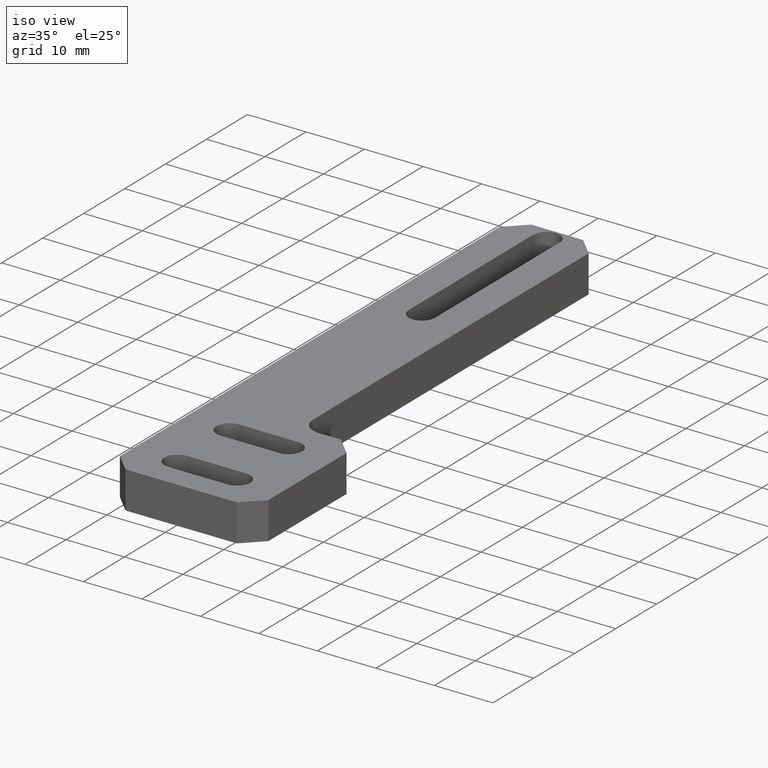
[diagram: clean part render]
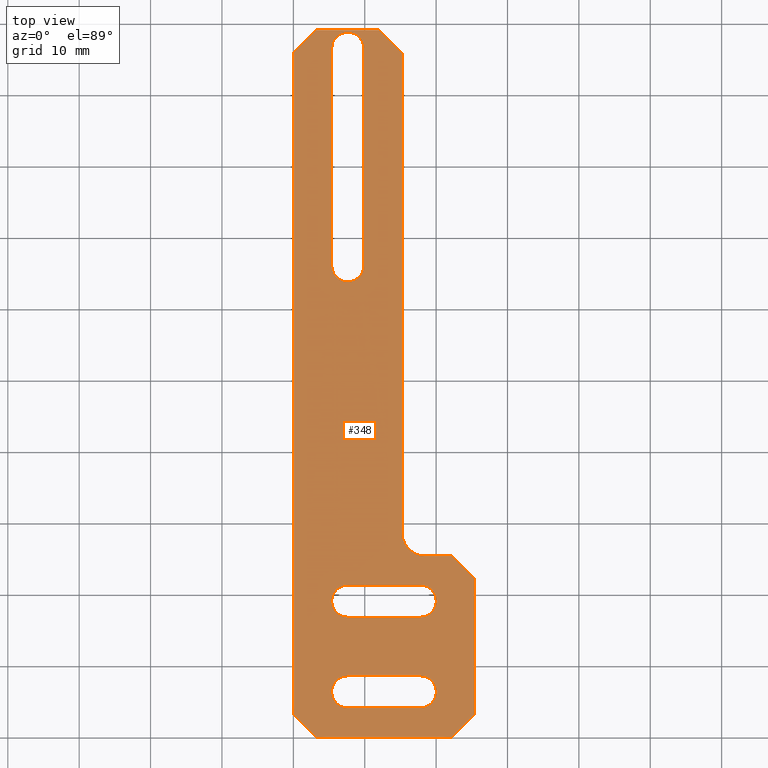
[diagram: tour spotlight — one face highlighted and labeled with its STEP entity id]
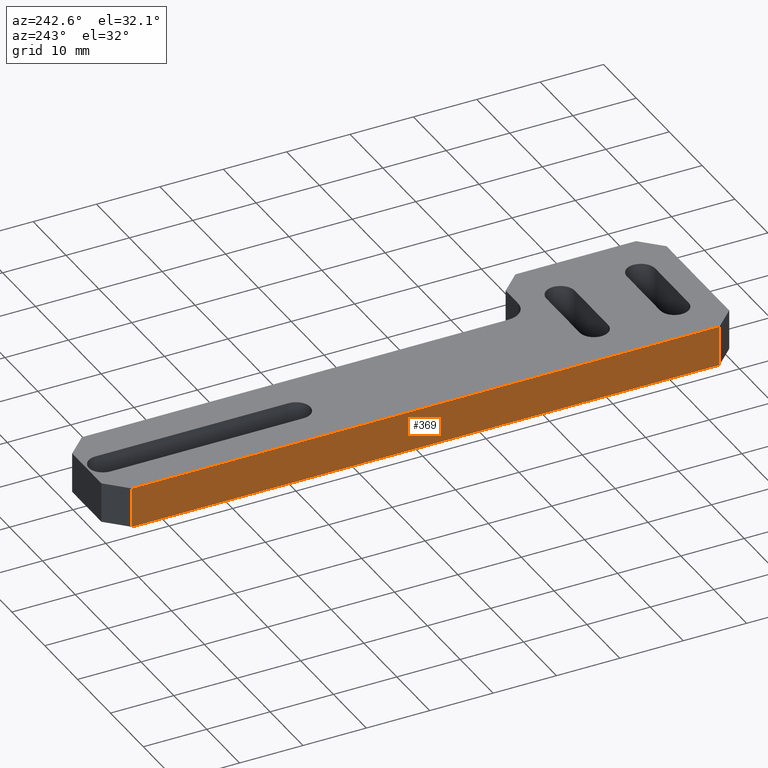
[diagram: tour spotlight — one face highlighted and labeled with its STEP entity id]
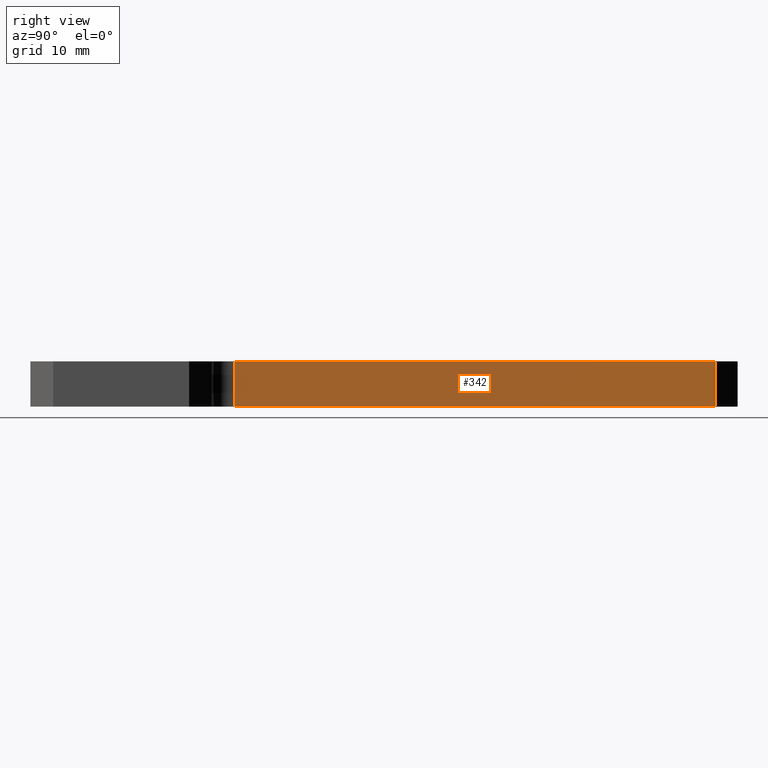
[diagram: tour spotlight — one face highlighted and labeled with its STEP entity id]
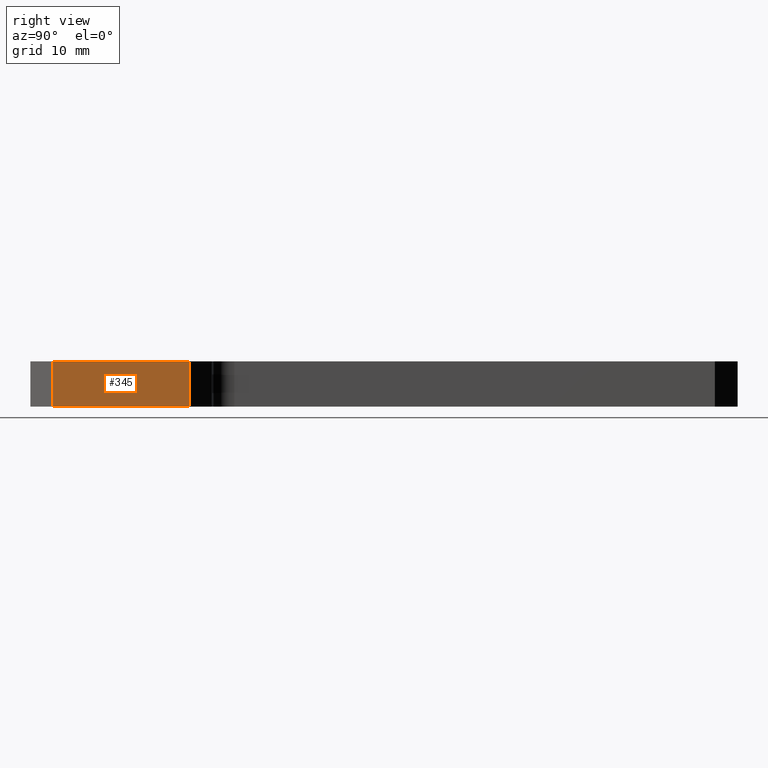
[diagram: tour spotlight — one face highlighted and labeled with its STEP entity id]
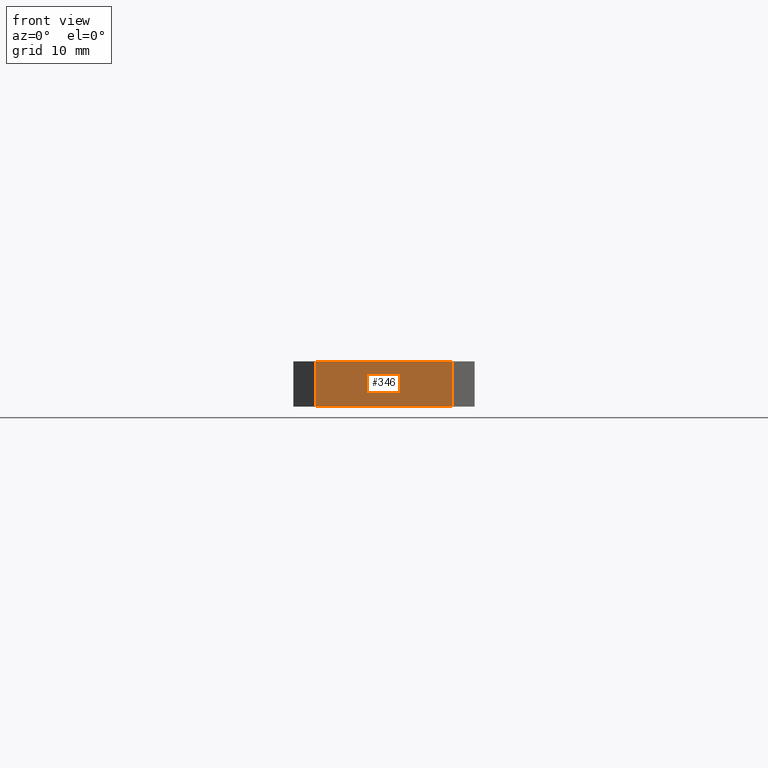
[diagram: tour spotlight — one face highlighted and labeled with its STEP entity id]
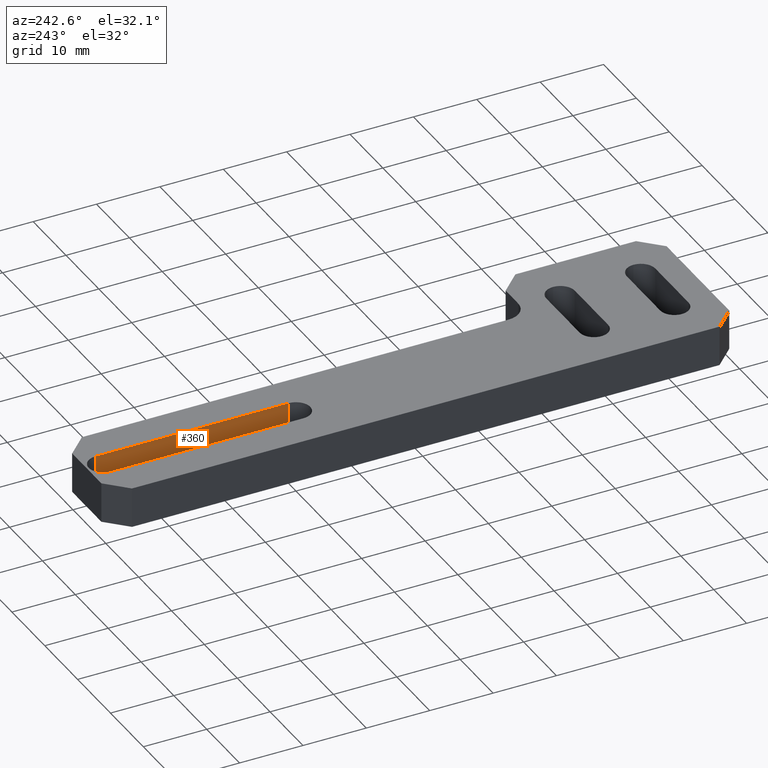
[diagram: tour spotlight — one face highlighted and labeled with its STEP entity id]
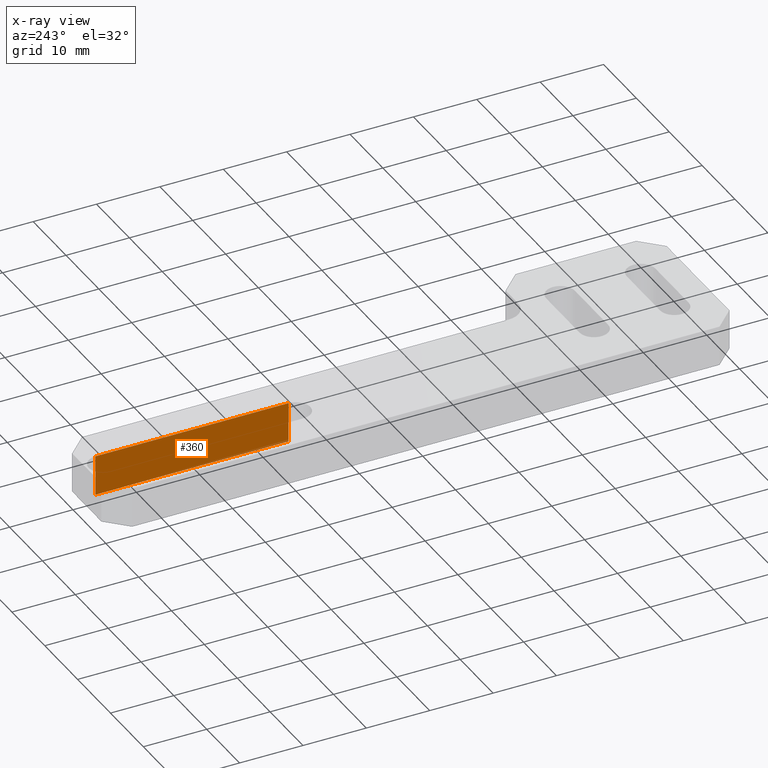
[diagram: x-ray of the same camera — body ghosted, this tour face saturated]
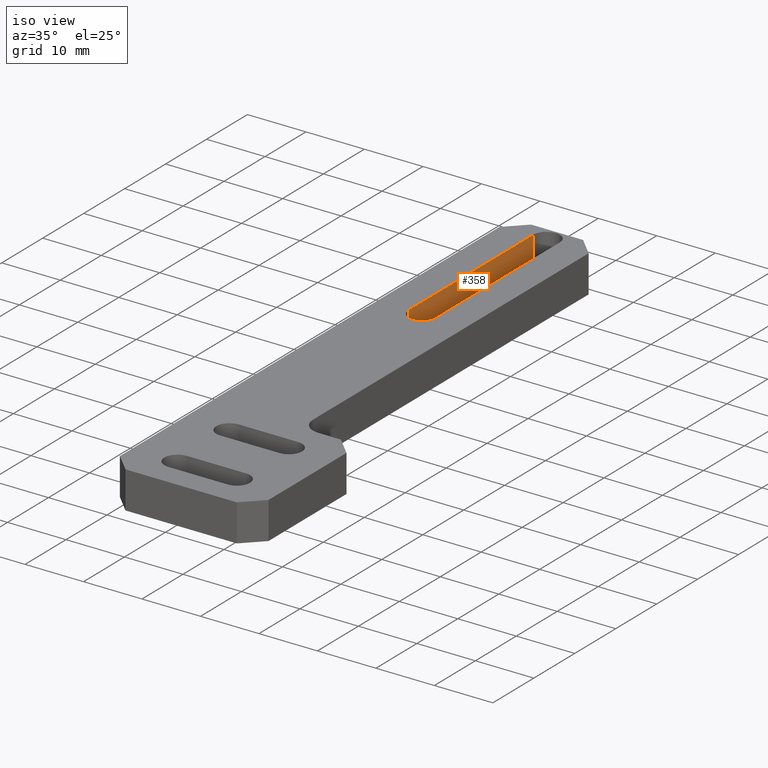
[diagram: tour spotlight — one face highlighted and labeled with its STEP entity id]
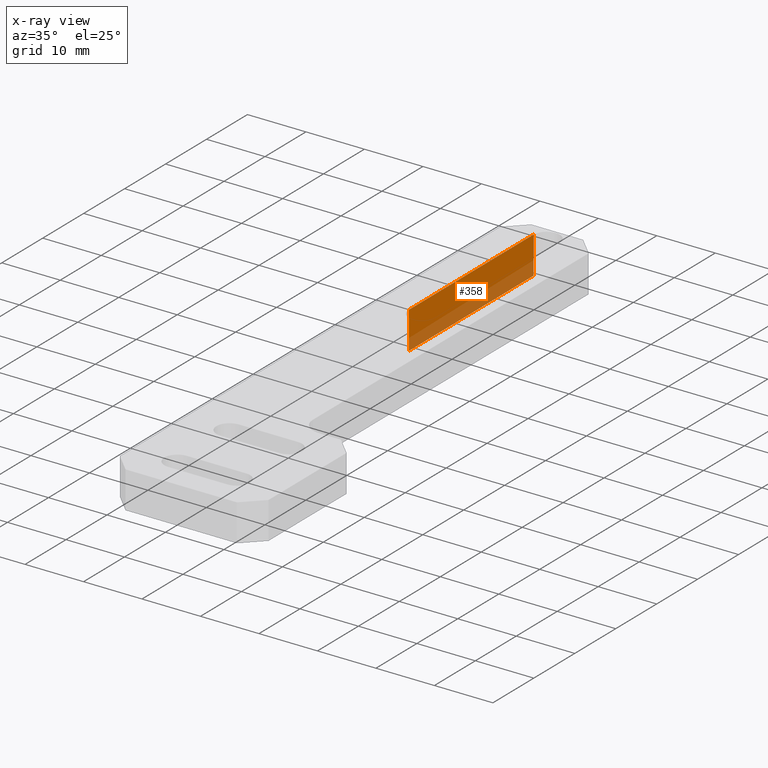
[diagram: x-ray of the same camera — body ghosted, this tour face saturated]
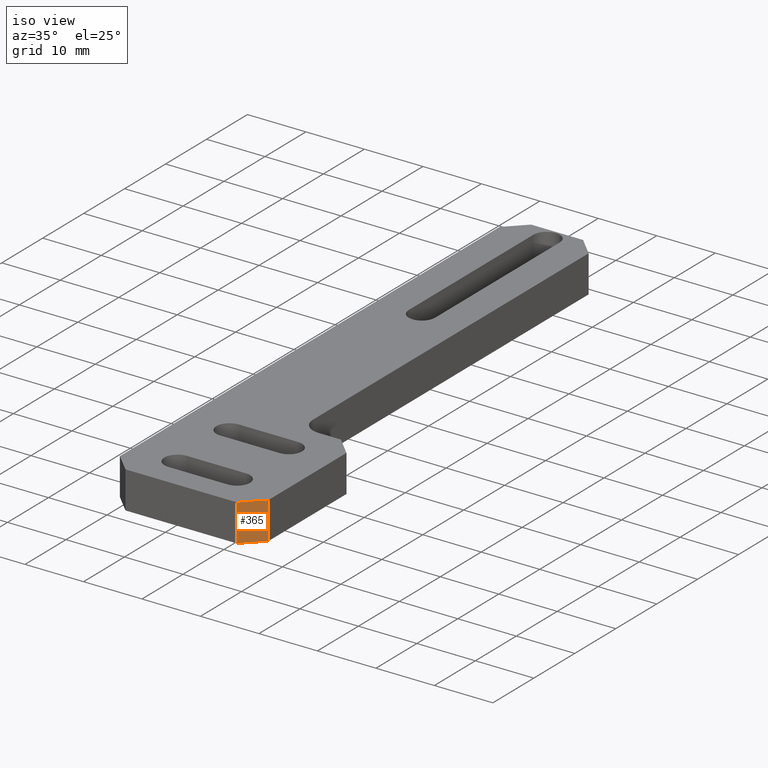
[diagram: tour spotlight — one face highlighted and labeled with its STEP entity id]
A machine part: a face-by-face anatomy tour. The part has 28 B-rep faces; the first image is the clean iso view, then the 8 largest visible faces are spotlighted one at a time (largest first), each with its STEP entity span.

Face 1 — top view, entity #348. In plain terms, the highlighted planar face has unit normal (-0, 0, -1).
Definition (entity closure, byte-faithful):
#1 = VECTOR ( 'NONE', #173, 39.37007874015748100 ) ;
#2 = LINE ( 'NONE', #172, #5 ) ;
#3 = CIRCLE ( 'NONE', #965, 0.1250000000000000300 ) ;
#4 = LINE ( 'NONE', #178, #7 ) ;
#5 = VECTOR ( 'NONE', #167, 39.37007874015748900 ) ;
#6 = LINE ( 'NONE', #180, #9 ) ;
#7 = VECTOR ( 'NONE', #179, 39.37007874015748100 ) ;
#8 = LINE ( 'NONE', #182, #11 ) ;
#9 = VECTOR ( 'NONE', #181, 39.37007874015748900 ) ;
#11 = VECTOR ( 'NONE', #183, 39.37007874015748900 ) ;
#31 = CIRCLE ( 'NONE', #966, 0.08850000000000002300 ) ;
#39 = CIRCLE ( 'NONE', #969, 0.08850000000000002300 ) ;
#43 = LINE ( 'NONE', #225, #46 ) ;
#46 = VECTOR ( 'NONE', #226, 39.37007874015748100 ) ;
#51 = LINE ( 'NONE', #233, #54 ) ;
#54 = VECTOR ( 'NONE', #234, 39.37007874015748100 ) ;
#59 = LINE ( 'NONE', #241, #62 ) ;
#62 = VECTOR ( 'NONE', #242, 39.37007874015748100 ) ;
#71 = LINE ( 'NONE', #253, #74 ) ;
#74 = VECTOR ( 'NONE', #254, 39.37007874015748100 ) ;
#79 = LINE ( 'NONE', #260, #82 ) ;
#82 = VECTOR ( 'NONE', #261, 39.37007874015748100 ) ;
#83 = LINE ( 'NONE', #264, #86 ) ;
#86 = VECTOR ( 'NONE', #265, 39.37007874015748100 ) ;
#120 = LINE ( 'NONE', #304, #122 ) ;
#122 = VECTOR ( 'NONE', #298, 39.37007874015748100 ) ;
#159 = DIRECTION ( 'NONE',  ( -1.000000000000000000, 0.0000000000000000000, 0.0000000000000000000 ) ) ;
#160 = CARTESIAN_POINT ( 'NONE',  ( 0.2999999999999999900, 0.6614999999999997500, 0.0000000000000000000 ) ) ;
#161 = DIRECTION ( 'NONE',  ( -1.000000000000000000, 0.0000000000000000000, 0.0000000000000000000 ) ) ;
#162 = DIRECTION ( 'NONE',  ( 1.000000000000000000, 0.0000000000000000000, 0.0000000000000000000 ) ) ;
#163 = CARTESIAN_POINT ( 'NONE',  ( 0.2999999999999999900, 0.7499999999999998900, 0.0000000000000000000 ) ) ;
#164 = DIRECTION ( 'NONE',  ( 0.0000000000000000000, 0.0000000000000000000, 1.000000000000000000 ) ) ;
#165 = DIRECTION ( 'NONE',  ( 1.000000000000000000, 0.0000000000000000000, 0.0000000000000000000 ) ) ;
#166 = CARTESIAN_POINT ( 'NONE',  ( 0.7000000000000000700, 0.8384999999999998000, 0.0000000000000000000 ) ) ;
#167 = DIRECTION ( 'NONE',  ( -0.7071067811865490200, 0.7071067811865459100, -0.0000000000000000000 ) ) ;
#168 = CARTESIAN_POINT ( 'NONE',  ( 1.000000000000000000, 0.8749999999999990000, 0.0000000000000000000 ) ) ;
#169 = CARTESIAN_POINT ( 'NONE',  ( 0.7000000000000000700, 0.7499999999999998900, 0.0000000000000000000 ) ) ;
#170 = DIRECTION ( 'NONE',  ( 0.0000000000000000000, 0.0000000000000000000, 1.000000000000000000 ) ) ;
#171 = DIRECTION ( 'NONE',  ( 1.000000000000000000, 0.0000000000000000000, 0.0000000000000000000 ) ) ;
#172 = CARTESIAN_POINT ( 'NONE',  ( 0.5999999999999999800, 3.775000000000000400, 0.0000000000000000000 ) ) ;
#173 = DIRECTION ( 'NONE',  ( -0.7071067811865490200, 0.7071067811865460200, -0.0000000000000000000 ) ) ;
#175 = CARTESIAN_POINT ( 'NONE',  ( 0.7250000000000002000, 1.125000000000000000, 0.0000000000000000000 ) ) ;
#176 = DIRECTION ( 'NONE',  ( -0.0000000000000000000, -0.0000000000000000000, -1.000000000000000000 ) ) ;
#177 = DIRECTION ( 'NONE',  ( -1.000000000000000000, 0.0000000000000000000, 0.0000000000000000000 ) ) ;
#178 = CARTESIAN_POINT ( 'NONE',  ( 0.1249999999999999000, 3.899999999999999900, 0.0000000000000000000 ) ) ;
#179 = DIRECTION ( 'NONE',  ( -0.7071067811865460200, -0.7071067811865490200, -0.0000000000000000000 ) ) ;
#180 = CARTESIAN_POINT ( 'NONE',  ( -3.532634997540461600E-019, 0.1249999999999999000, 0.0000000000000000000 ) ) ;
#181 = DIRECTION ( 'NONE',  ( 0.7071067811865490200, -0.7071067811865459100, -0.0000000000000000000 ) ) ;
#182 = CARTESIAN_POINT ( 'NONE',  ( 0.8749999999999995600, 0.0000000000000000000, 0.0000000000000000000 ) ) ;
#183 = DIRECTION ( 'NONE',  ( 0.7071067811865459100, 0.7071067811865490200, -0.0000000000000000000 ) ) ;
#205 = CARTESIAN_POINT ( 'NONE',  ( 0.7000000000000000700, 0.2500000000000000000, 0.0000000000000000000 ) ) ;
#206 = DIRECTION ( 'NONE',  ( 0.0000000000000000000, 0.0000000000000000000, 1.000000000000000000 ) ) ;
#207 = DIRECTION ( 'NONE',  ( -1.000000000000000000, 0.0000000000000000000, 0.0000000000000000000 ) ) ;
#222 = CARTESIAN_POINT ( 'NONE',  ( 0.7000000000000000700, 0.7499999999999998900, 0.0000000000000000000 ) ) ;
#223 = DIRECTION ( 'NONE',  ( 0.0000000000000000000, 0.0000000000000000000, 1.000000000000000000 ) ) ;
#224 = DIRECTION ( 'NONE',  ( 1.000000000000000000, 0.0000000000000000000, 0.0000000000000000000 ) ) ;
#225 = CARTESIAN_POINT ( 'NONE',  ( -1.102182119232625300E-017, 3.899999999999999900, 0.0000000000000000000 ) ) ;
#226 = DIRECTION ( 'NONE',  ( 2.826107998032372400E-018, -1.000000000000000000, 0.0000000000000000000 ) ) ;
#233 = CARTESIAN_POINT ( 'NONE',  ( 0.5999999999999999800, 3.899999999999999900, 0.0000000000000000000 ) ) ;
#234 = DIRECTION ( 'NONE',  ( -1.000000000000000000, 0.0000000000000000000, 0.0000000000000000000 ) ) ;
#241 = CARTESIAN_POINT ( 'NONE',  ( 0.5999999999999999800, 3.899999999999999900, 0.0000000000000000000 ) ) ;
#242 = DIRECTION ( 'NONE',  ( -1.177520686924251200E-016, 1.000000000000000000, -0.0000000000000000000 ) ) ;
#253 = CARTESIAN_POINT ( 'NONE',  ( 0.6000000000000003100, 1.000000000000000000, 0.0000000000000000000 ) ) ;
#254 = DIRECTION ( 'NONE',  ( -1.000000000000000000, -0.0000000000000000000, -0.0000000000000000000 ) ) ;
#260 = CARTESIAN_POINT ( 'NONE',  ( 1.000000000000000000, 1.000000000000000000, 0.0000000000000000000 ) ) ;
#261 = DIRECTION ( 'NONE',  ( -0.0000000000000000000, 1.000000000000000000, -0.0000000000000000000 ) ) ;
#264 = CARTESIAN_POINT ( 'NONE',  ( 1.000000000000000000, 0.0000000000000000000, 0.0000000000000000000 ) ) ;
#265 = DIRECTION ( 'NONE',  ( 1.000000000000000000, -0.0000000000000000000, -0.0000000000000000000 ) ) ;
#298 = DIRECTION ( 'NONE',  ( -5.691349986800549600E-017, 1.000000000000000000, -0.0000000000000000000 ) ) ;
#304 = CARTESIAN_POINT ( 'NONE',  ( 0.3884999999999993500, 3.799999999999999400, 0.0000000000000000000 ) ) ;
#348 = ADVANCED_FACE ( 'NONE', ( #803, #800, #804, #807 ), #630, .F. ) ;
#371 = ORIENTED_EDGE ( 'NONE', *, *, #866, .T. ) ;
#372 = ORIENTED_EDGE ( 'NONE', *, *, #924, .T. ) ;
#373 = ORIENTED_EDGE ( 'NONE', *, *, #862, .T. ) ;
#374 = ORIENTED_EDGE ( 'NONE', *, *, #861, .F. ) ;
#376 = ORIENTED_EDGE ( 'NONE', *, *, #864, .T. ) ;
#377 = ORIENTED_EDGE ( 'NONE', *, *, #906, .T. ) ;
#378 = ORIENTED_EDGE ( 'NONE', *, *, #859, .F. ) ;
#379 = ORIENTED_EDGE ( 'NONE', *, *, #867, .T. ) ;
#380 = ORIENTED_EDGE ( 'NONE', *, *, #914, .T. ) ;
#381 = ORIENTED_EDGE ( 'NONE', *, *, #910, .T. ) ;
#382 = ORIENTED_EDGE ( 'NONE', *, *, #904, .F. ) ;
#383 = ORIENTED_EDGE ( 'NONE', *, *, #865, .T. ) ;
#384 = ORIENTED_EDGE ( 'NONE', *, *, #920, .T. ) ;
#392 = ORIENTED_EDGE ( 'NONE', *, *, #863, .T. ) ;
#393 = ORIENTED_EDGE ( 'NONE', *, *, #926, .T. ) ;
#468 = EDGE_LOOP ( 'NONE', ( #506, #378, #507, #382, #374 ) ) ;
#469 = EDGE_LOOP ( 'NONE', ( #509, #508, #561, #560, #562 ) ) ;
#472 = EDGE_LOOP ( 'NONE', ( #514, #513, #511, #510 ) ) ;
#475 = EDGE_LOOP ( 'NONE', ( #372, #373, #384, #392, #380, #376, #381, #383, #377, #371, #393, #379 ) ) ;
#506 = ORIENTED_EDGE ( 'NONE', *, *, #858, .F. ) ;
#507 = ORIENTED_EDGE ( 'NONE', *, *, #860, .F. ) ;
#508 = ORIENTED_EDGE ( 'NONE', *, *, #855, .F. ) ;
#509 = ORIENTED_EDGE ( 'NONE', *, *, #854, .F. ) ;
#510 = ORIENTED_EDGE ( 'NONE', *, *, #853, .F. ) ;
#511 = ORIENTED_EDGE ( 'NONE', *, *, #852, .F. ) ;
#513 = ORIENTED_EDGE ( 'NONE', *, *, #851, .F. ) ;
#514 = ORIENTED_EDGE ( 'NONE', *, *, #948, .F. ) ;
#560 = ORIENTED_EDGE ( 'NONE', *, *, #898, .F. ) ;
#561 = ORIENTED_EDGE ( 'NONE', *, *, #856, .F. ) ;
#562 = ORIENTED_EDGE ( 'NONE', *, *, #857, .F. ) ;
#563 = VERTEX_POINT ( 'NONE', #704 ) ;
#564 = VERTEX_POINT ( 'NONE', #709 ) ;
#565 = VERTEX_POINT ( 'NONE', #703 ) ;
#567 = VERTEX_POINT ( 'NONE', #711 ) ;
#572 = VERTEX_POINT ( 'NONE', #714 ) ;
#573 = VERTEX_POINT ( 'NONE', #715 ) ;
#574 = VERTEX_POINT ( 'NONE', #716 ) ;
#575 = VERTEX_POINT ( 'NONE', #717 ) ;
#576 = VERTEX_POINT ( 'NONE', #718 ) ;
#579 = VERTEX_POINT ( 'NONE', #721 ) ;
#580 = VERTEX_POINT ( 'NONE', #722 ) ;
#588 = VERTEX_POINT ( 'NONE', #730 ) ;
#589 = VERTEX_POINT ( 'NONE', #731 ) ;
#591 = VERTEX_POINT ( 'NONE', #733 ) ;
#592 = VERTEX_POINT ( 'NONE', #734 ) ;
#593 = VERTEX_POINT ( 'NONE', #735 ) ;
#594 = VERTEX_POINT ( 'NONE', #736 ) ;
#600 = VERTEX_POINT ( 'NONE', #742 ) ;
#624 = DIRECTION ( 'NONE',  ( -0.0000000000000000000, 0.0000000000000000000, -1.000000000000000000 ) ) ;
#629 = CARTESIAN_POINT ( 'NONE',  ( 0.0000000000000000000, 0.0000000000000000000, 0.0000000000000000000 ) ) ;
#630 = PLANE ( 'NONE',  #884 ) ;
#631 = DIRECTION ( 'NONE',  ( -1.000000000000000000, 0.0000000000000000000, 0.0000000000000000000 ) ) ;
#703 = CARTESIAN_POINT ( 'NONE',  ( 0.2999999999999999900, 0.1615000000000001700, 0.0000000000000000000 ) ) ;
#704 = CARTESIAN_POINT ( 'NONE',  ( 0.7000000000000000700, 0.3385000000000003000, 0.0000000000000000000 ) ) ;
#709 = CARTESIAN_POINT ( 'NONE',  ( -1.066855769257220400E-017, 3.774999999999999500, 0.0000000000000000000 ) ) ;
#711 = CARTESIAN_POINT ( 'NONE',  ( 0.7885000000000000900, 0.2500000000000000000, 0.0000000000000000000 ) ) ;
#714 = CARTESIAN_POINT ( 'NONE',  ( -1.369456631829672300E-016, 0.1250000000000003100, 0.0000000000000000000 ) ) ;
#715 = CARTESIAN_POINT ( 'NONE',  ( 0.7885000000000000900, 0.7499999999999998900, 0.0000000000000000000 ) ) ;
#716 = CARTESIAN_POINT ( 'NONE',  ( 0.7000000000000000700, 0.8384999999999999100, 0.0000000000000000000 ) ) ;
#717 = CARTESIAN_POINT ( 'NONE',  ( 0.4750000000000001400, 3.899999999999999900, 0.0000000000000000000 ) ) ;
#718 = CARTESIAN_POINT ( 'NONE',  ( 0.1249999999999999400, 3.899999999999999900, 0.0000000000000000000 ) ) ;
#721 = CARTESIAN_POINT ( 'NONE',  ( 0.6000000000000003100, 1.125000000000000200, 0.0000000000000000000 ) ) ;
#722 = CARTESIAN_POINT ( 'NONE',  ( 0.5999999999999999800, 3.775000000000000400, 0.0000000000000000000 ) ) ;
#730 = CARTESIAN_POINT ( 'NONE',  ( 0.8749999999999984500, 1.000000000000000000, 0.0000000000000000000 ) ) ;
#731 = CARTESIAN_POINT ( 'NONE',  ( 0.7250000000000002000, 1.000000000000000000, 0.0000000000000000000 ) ) ;
#733 = CARTESIAN_POINT ( 'NONE',  ( 0.1250000000000004400, 0.0000000000000000000, 0.0000000000000000000 ) ) ;
#734 = CARTESIAN_POINT ( 'NONE',  ( 1.000000000000000000, 0.1250000000000010000, 0.0000000000000000000 ) ) ;
#735 = CARTESIAN_POINT ( 'NONE',  ( 1.000000000000000000, 0.8749999999999990000, 0.0000000000000000000 ) ) ;
#736 = CARTESIAN_POINT ( 'NONE',  ( 0.8749999999999995600, 0.0000000000000000000, 0.0000000000000000000 ) ) ;
#742 = CARTESIAN_POINT ( 'NONE',  ( 0.3884999999999994000, 2.599999999999999600, 0.0000000000000000000 ) ) ;
#745 = CARTESIAN_POINT ( 'NONE',  ( 0.2999999999999999900, 0.3385000000000003000, 0.0000000000000000000 ) ) ;
#746 = CARTESIAN_POINT ( 'NONE',  ( 0.2999999999999999900, 0.8384999999999998000, 0.0000000000000000000 ) ) ;
#748 = CARTESIAN_POINT ( 'NONE',  ( 0.2114999999999993300, 3.799999999999999400, 0.0000000000000000000 ) ) ;
#749 = CARTESIAN_POINT ( 'NONE',  ( 0.7000000000000000700, 0.6614999999999997500, 0.0000000000000000000 ) ) ;
#751 = CARTESIAN_POINT ( 'NONE',  ( 0.7000000000000000700, 0.1614999999999999800, 0.0000000000000000000 ) ) ;
#752 = CARTESIAN_POINT ( 'NONE',  ( 0.2114999999999991900, 2.599999999999999600, 0.0000000000000000000 ) ) ;
#753 = CARTESIAN_POINT ( 'NONE',  ( 0.2999999999999999900, 0.6614999999999997500, 0.0000000000000000000 ) ) ;
#754 = CARTESIAN_POINT ( 'NONE',  ( 0.3884999999999993500, 3.799999999999999400, 0.0000000000000000000 ) ) ;
#757 = DIRECTION ( 'NONE',  ( -8.537024980200823800E-017, -1.000000000000000000, -0.0000000000000000000 ) ) ;
#758 = CARTESIAN_POINT ( 'NONE',  ( 0.2114999999999991900, 2.599999999999999600, 0.0000000000000000000 ) ) ;
#759 = CARTESIAN_POINT ( 'NONE',  ( 0.2999999999999995400, 2.599999999999999600, 0.0000000000000000000 ) ) ;
#760 = DIRECTION ( 'NONE',  ( 0.0000000000000000000, 0.0000000000000000000, 1.000000000000000000 ) ) ;
#761 = DIRECTION ( 'NONE',  ( -1.000000000000000000, 0.0000000000000000000, 0.0000000000000000000 ) ) ;
#762 = DIRECTION ( 'NONE',  ( 1.000000000000000000, 1.707404996040164000E-016, -0.0000000000000000000 ) ) ;
#763 = CARTESIAN_POINT ( 'NONE',  ( 0.7000000000000000700, 0.1615000000000002500, 0.0000000000000000000 ) ) ;
#764 = CARTESIAN_POINT ( 'NONE',  ( 0.2999999999999993800, 3.799999999999999400, 0.0000000000000000000 ) ) ;
#765 = DIRECTION ( 'NONE',  ( 0.0000000000000000000, 0.0000000000000000000, 1.000000000000000000 ) ) ;
#766 = DIRECTION ( 'NONE',  ( -1.000000000000000000, 0.0000000000000000000, 0.0000000000000000000 ) ) ;
#767 = DIRECTION ( 'NONE',  ( -1.000000000000000000, -0.0000000000000000000, -0.0000000000000000000 ) ) ;
#768 = CARTESIAN_POINT ( 'NONE',  ( 0.2999999999999999900, 0.3385000000000003000, 0.0000000000000000000 ) ) ;
#769 = CARTESIAN_POINT ( 'NONE',  ( 0.2999999999999999900, 0.2500000000000000000, 0.0000000000000000000 ) ) ;
#770 = DIRECTION ( 'NONE',  ( 0.0000000000000000000, 0.0000000000000000000, 1.000000000000000000 ) ) ;
#771 = DIRECTION ( 'NONE',  ( -1.000000000000000000, 0.0000000000000000000, 0.0000000000000000000 ) ) ;
#772 = CIRCLE ( 'NONE', #961, 0.08850000000000006500 ) ;
#773 = LINE ( 'NONE', #763, #774 ) ;
#774 = VECTOR ( 'NONE', #762, 39.37007874015748100 ) ;
#775 = VECTOR ( 'NONE', #161, 39.37007874015748100 ) ;
#776 = CARTESIAN_POINT ( 'NONE',  ( 0.7000000000000000700, 0.2500000000000000000, 0.0000000000000000000 ) ) ;
#777 = DIRECTION ( 'NONE',  ( 0.0000000000000000000, 0.0000000000000000000, 1.000000000000000000 ) ) ;
#778 = CIRCLE ( 'NONE', #960, 0.08850000000000002300 ) ;
#779 = LINE ( 'NONE', #166, #775 ) ;
#780 = CIRCLE ( 'NONE', #962, 0.08850000000000002300 ) ;
#781 = VECTOR ( 'NONE', #162, 39.37007874015748100 ) ;
#782 = LINE ( 'NONE', #160, #781 ) ;
#785 = LINE ( 'NONE', #168, #1 ) ;
#786 = VECTOR ( 'NONE', #767, 39.37007874015748100 ) ;
#788 = VERTEX_POINT ( 'NONE', #745 ) ;
#789 = VERTEX_POINT ( 'NONE', #746 ) ;
#791 = VERTEX_POINT ( 'NONE', #748 ) ;
#795 = VERTEX_POINT ( 'NONE', #749 ) ;
#800 = FACE_BOUND ( 'NONE', #469, .T. ) ;
#801 = VERTEX_POINT ( 'NONE', #751 ) ;
#803 = FACE_BOUND ( 'NONE', #472, .T. ) ;
#804 = FACE_BOUND ( 'NONE', #468, .T. ) ;
#805 = VERTEX_POINT ( 'NONE', #752 ) ;
#806 = VERTEX_POINT ( 'NONE', #753 ) ;
#807 = FACE_OUTER_BOUND ( 'NONE', #475, .T. ) ;
#809 = VERTEX_POINT ( 'NONE', #754 ) ;
#826 = CIRCLE ( 'NONE', #964, 0.08850000000000002300 ) ;
#837 = CIRCLE ( 'NONE', #963, 0.08849999999999999500 ) ;
#844 = VECTOR ( 'NONE', #757, 39.37007874015748100 ) ;
#845 = CIRCLE ( 'NONE', #954, 0.08850000000000009200 ) ;
#847 = LINE ( 'NONE', #758, #844 ) ;
#849 = LINE ( 'NONE', #768, #786 ) ;
#851 = EDGE_CURVE ( 'NONE', #805, #600, #845, .T. ) ;
#852 = EDGE_CURVE ( 'NONE', #791, #805, #847, .T. ) ;
#853 = EDGE_CURVE ( 'NONE', #809, #791, #778, .T. ) ;
#854 = EDGE_CURVE ( 'NONE', #565, #801, #773, .T. ) ;
#855 = EDGE_CURVE ( 'NONE', #788, #565, #772, .T. ) ;
#856 = EDGE_CURVE ( 'NONE', #563, #788, #849, .T. ) ;
#857 = EDGE_CURVE ( 'NONE', #801, #567, #780, .T. ) ;
#858 = EDGE_CURVE ( 'NONE', #806, #795, #782, .T. ) ;
#859 = EDGE_CURVE ( 'NONE', #789, #806, #837, .T. ) ;
#860 = EDGE_CURVE ( 'NONE', #574, #789, #779, .T. ) ;
#861 = EDGE_CURVE ( 'NONE', #795, #573, #826, .T. ) ;
#862 = EDGE_CURVE ( 'NONE', #593, #588, #785, .T. ) ;
#863 = EDGE_CURVE ( 'NONE', #589, #579, #3, .T. ) ;
#864 = EDGE_CURVE ( 'NONE', #580, #575, #2, .T. ) ;
#865 = EDGE_CURVE ( 'NONE', #576, #564, #4, .T. ) ;
#866 = EDGE_CURVE ( 'NONE', #572, #591, #6, .T. ) ;
#867 = EDGE_CURVE ( 'NONE', #594, #592, #8, .T. ) ;
#884 = AXIS2_PLACEMENT_3D ( 'NONE', #629, #624, #631 ) ;
#898 = EDGE_CURVE ( 'NONE', #567, #563, #31, .T. ) ;
#904 = EDGE_CURVE ( 'NONE', #573, #574, #39, .T. ) ;
#906 = EDGE_CURVE ( 'NONE', #564, #572, #43, .T. ) ;
#910 = EDGE_CURVE ( 'NONE', #575, #576, #51, .T. ) ;
#914 = EDGE_CURVE ( 'NONE', #579, #580, #59, .T. ) ;
#920 = EDGE_CURVE ( 'NONE', #588, #589, #71, .T. ) ;
#924 = EDGE_CURVE ( 'NONE', #592, #593, #79, .T. ) ;
#926 = EDGE_CURVE ( 'NONE', #591, #594, #83, .T. ) ;
#948 = EDGE_CURVE ( 'NONE', #600, #809, #120, .T. ) ;
#954 = AXIS2_PLACEMENT_3D ( 'NONE', #759, #760, #761 ) ;
#960 = AXIS2_PLACEMENT_3D ( 'NONE', #764, #765, #766 ) ;
#961 = AXIS2_PLACEMENT_3D ( 'NONE', #769, #770, #771 ) ;
#962 = AXIS2_PLACEMENT_3D ( 'NONE', #776, #777, #159 ) ;
#963 = AXIS2_PLACEMENT_3D ( 'NONE', #163, #164, #165 ) ;
#964 = AXIS2_PLACEMENT_3D ( 'NONE', #169, #170, #171 ) ;
#965 = AXIS2_PLACEMENT_3D ( 'NONE', #175, #176, #177 ) ;
#966 = AXIS2_PLACEMENT_3D ( 'NONE', #205, #206, #207 ) ;
#969 = AXIS2_PLACEMENT_3D ( 'NONE', #222, #223, #224 ) ;

Face 2 — auxiliary view, entity #369. In plain terms, the highlighted planar face has unit normal (-1, -0, 0).
Definition (entity closure, byte-faithful):
#40 = LINE ( 'NONE', #221, #50 ) ;
#43 = LINE ( 'NONE', #225, #46 ) ;
#45 = LINE ( 'NONE', #227, #48 ) ;
#46 = VECTOR ( 'NONE', #226, 39.37007874015748100 ) ;
#48 = VECTOR ( 'NONE', #229, 39.37007874015748100 ) ;
#49 = LINE ( 'NONE', #231, #52 ) ;
#50 = VECTOR ( 'NONE', #230, 39.37007874015748100 ) ;
#52 = VECTOR ( 'NONE', #232, 39.37007874015748100 ) ;
#221 = CARTESIAN_POINT ( 'NONE',  ( -1.102182119232625300E-017, 3.899999999999999900, -0.2500000000000000000 ) ) ;
#225 = CARTESIAN_POINT ( 'NONE',  ( -1.102182119232625300E-017, 3.899999999999999900, 0.0000000000000000000 ) ) ;
#226 = DIRECTION ( 'NONE',  ( 2.826107998032372400E-018, -1.000000000000000000, 0.0000000000000000000 ) ) ;
#227 = CARTESIAN_POINT ( 'NONE',  ( -1.066855769257220400E-017, 3.774999999999999500, -0.2500000000000000000 ) ) ;
#229 = DIRECTION ( 'NONE',  ( 0.0000000000000000000, 0.0000000000000000000, -1.000000000000000000 ) ) ;
#230 = DIRECTION ( 'NONE',  ( 2.826107998032372400E-018, -1.000000000000000000, 0.0000000000000000000 ) ) ;
#231 = CARTESIAN_POINT ( 'NONE',  ( -3.532634997540461600E-019, 0.1249999999999999000, -0.2500000000000000000 ) ) ;
#232 = DIRECTION ( 'NONE',  ( 0.0000000000000000000, 0.0000000000000000000, 1.000000000000000000 ) ) ;
#369 = ADVANCED_FACE ( 'NONE', ( #839 ), #702, .T. ) ;
#466 = EDGE_LOOP ( 'NONE', ( #497, #498, #502, #558 ) ) ;
#497 = ORIENTED_EDGE ( 'NONE', *, *, #906, .F. ) ;
#498 = ORIENTED_EDGE ( 'NONE', *, *, #907, .T. ) ;
#502 = ORIENTED_EDGE ( 'NONE', *, *, #908, .T. ) ;
#558 = ORIENTED_EDGE ( 'NONE', *, *, #909, .T. ) ;
#564 = VERTEX_POINT ( 'NONE', #709 ) ;
#572 = VERTEX_POINT ( 'NONE', #714 ) ;
#577 = VERTEX_POINT ( 'NONE', #719 ) ;
#578 = VERTEX_POINT ( 'NONE', #720 ) ;
#700 = CARTESIAN_POINT ( 'NONE',  ( -1.102182119232625300E-017, 3.899999999999999900, -0.2500000000000000000 ) ) ;
#702 = PLANE ( 'NONE',  #959 ) ;
#705 = DIRECTION ( 'NONE',  ( -1.000000000000000000, -2.826107998032372400E-018, 0.0000000000000000000 ) ) ;
#706 = DIRECTION ( 'NONE',  ( 2.826107998032372400E-018, -1.000000000000000000, 0.0000000000000000000 ) ) ;
#709 = CARTESIAN_POINT ( 'NONE',  ( -1.066855769257220400E-017, 3.774999999999999500, 0.0000000000000000000 ) ) ;
#714 = CARTESIAN_POINT ( 'NONE',  ( -1.369456631829672300E-016, 0.1250000000000003100, 0.0000000000000000000 ) ) ;
#719 = CARTESIAN_POINT ( 'NONE',  ( -1.419266785294992800E-016, 3.774999999999999000, -0.2500000000000000000 ) ) ;
#720 = CARTESIAN_POINT ( 'NONE',  ( -1.495745689033914100E-016, 0.1250000000000003100, -0.2500000000000000000 ) ) ;
#839 = FACE_OUTER_BOUND ( 'NONE', #466, .T. ) ;
#906 = EDGE_CURVE ( 'NONE', #564, #572, #43, .T. ) ;
#907 = EDGE_CURVE ( 'NONE', #564, #577, #45, .T. ) ;
#908 = EDGE_CURVE ( 'NONE', #577, #578, #40, .T. ) ;
#909 = EDGE_CURVE ( 'NONE', #578, #572, #49, .T. ) ;
#959 = AXIS2_PLACEMENT_3D ( 'NONE', #700, #705, #706 ) ;

Face 3 — right view, entity #342. In plain terms, the highlighted planar face has unit normal (1, 0, -0).
Definition (entity closure, byte-faithful):
#55 = LINE ( 'NONE', #228, #66 ) ;
#59 = LINE ( 'NONE', #241, #62 ) ;
#61 = LINE ( 'NONE', #243, #64 ) ;
#62 = VECTOR ( 'NONE', #242, 39.37007874015748100 ) ;
#64 = VECTOR ( 'NONE', #245, 39.37007874015748100 ) ;
#65 = LINE ( 'NONE', #247, #68 ) ;
#66 = VECTOR ( 'NONE', #246, 39.37007874015748100 ) ;
#68 = VECTOR ( 'NONE', #248, 39.37007874015748100 ) ;
#228 = CARTESIAN_POINT ( 'NONE',  ( 0.5999999999999999800, 3.899999999999999900, -0.2500000000000000000 ) ) ;
#241 = CARTESIAN_POINT ( 'NONE',  ( 0.5999999999999999800, 3.899999999999999900, 0.0000000000000000000 ) ) ;
#242 = DIRECTION ( 'NONE',  ( -1.177520686924251200E-016, 1.000000000000000000, -0.0000000000000000000 ) ) ;
#243 = CARTESIAN_POINT ( 'NONE',  ( 0.6000000000000003100, 1.125000000000000000, -0.2500000000000000000 ) ) ;
#245 = DIRECTION ( 'NONE',  ( -0.0000000000000000000, -0.0000000000000000000, -1.000000000000000000 ) ) ;
#246 = DIRECTION ( 'NONE',  ( -1.177520686924251200E-016, 1.000000000000000000, -0.0000000000000000000 ) ) ;
#247 = CARTESIAN_POINT ( 'NONE',  ( 0.5999999999999999800, 3.775000000000000400, -0.2500000000000000000 ) ) ;
#248 = DIRECTION ( 'NONE',  ( 0.0000000000000000000, 0.0000000000000000000, 1.000000000000000000 ) ) ;
#342 = ADVANCED_FACE ( 'NONE', ( #797 ), #607, .T. ) ;
#464 = EDGE_LOOP ( 'NONE', ( #553, #493, #554, #550 ) ) ;
#493 = ORIENTED_EDGE ( 'NONE', *, *, #915, .T. ) ;
#550 = ORIENTED_EDGE ( 'NONE', *, *, #917, .T. ) ;
#553 = ORIENTED_EDGE ( 'NONE', *, *, #914, .F. ) ;
#554 = ORIENTED_EDGE ( 'NONE', *, *, #916, .T. ) ;
#579 = VERTEX_POINT ( 'NONE', #721 ) ;
#580 = VERTEX_POINT ( 'NONE', #722 ) ;
#585 = VERTEX_POINT ( 'NONE', #727 ) ;
#586 = VERTEX_POINT ( 'NONE', #728 ) ;
#602 = DIRECTION ( 'NONE',  ( 1.000000000000000000, 1.177520686924251200E-016, -0.0000000000000000000 ) ) ;
#604 = DIRECTION ( 'NONE',  ( -1.177520686924251200E-016, 1.000000000000000000, 0.0000000000000000000 ) ) ;
#606 = CARTESIAN_POINT ( 'NONE',  ( 0.5999999999999999800, 3.899999999999999900, -0.2500000000000000000 ) ) ;
#607 = PLANE ( 'NONE',  #878 ) ;
#721 = CARTESIAN_POINT ( 'NONE',  ( 0.6000000000000003100, 1.125000000000000200, 0.0000000000000000000 ) ) ;
#722 = CARTESIAN_POINT ( 'NONE',  ( 0.5999999999999999800, 3.775000000000000400, 0.0000000000000000000 ) ) ;
#727 = CARTESIAN_POINT ( 'NONE',  ( 0.6000000000000003100, 1.125000000000000200, -0.2500000000000000000 ) ) ;
#728 = CARTESIAN_POINT ( 'NONE',  ( 0.5999999999999996400, 3.775000000000001700, -0.2500000000000000000 ) ) ;
#797 = FACE_OUTER_BOUND ( 'NONE', #464, .T. ) ;
#878 = AXIS2_PLACEMENT_3D ( 'NONE', #606, #602, #604 ) ;
#914 = EDGE_CURVE ( 'NONE', #579, #580, #59, .T. ) ;
#915 = EDGE_CURVE ( 'NONE', #579, #585, #61, .T. ) ;
#916 = EDGE_CURVE ( 'NONE', #585, #586, #55, .T. ) ;
#917 = EDGE_CURVE ( 'NONE', #586, #580, #65, .T. ) ;

Face 4 — right view, entity #345. In plain terms, the highlighted planar face has unit normal (1, 0, -0).
Definition (entity closure, byte-faithful):
#69 = LINE ( 'NONE', #244, #80 ) ;
#75 = LINE ( 'NONE', #257, #78 ) ;
#78 = VECTOR ( 'NONE', #258, 39.37007874015748100 ) ;
#79 = LINE ( 'NONE', #260, #82 ) ;
#80 = VECTOR ( 'NONE', #259, 39.37007874015748100 ) ;
#81 = LINE ( 'NONE', #262, #84 ) ;
#82 = VECTOR ( 'NONE', #261, 39.37007874015748100 ) ;
#84 = VECTOR ( 'NONE', #263, 39.37007874015748100 ) ;
#244 = CARTESIAN_POINT ( 'NONE',  ( 1.000000000000000000, 0.8749999999999990000, -0.2500000000000000000 ) ) ;
#257 = CARTESIAN_POINT ( 'NONE',  ( 1.000000000000000000, 1.000000000000000000, -0.2500000000000000000 ) ) ;
#258 = DIRECTION ( 'NONE',  ( -0.0000000000000000000, 1.000000000000000000, -0.0000000000000000000 ) ) ;
#259 = DIRECTION ( 'NONE',  ( 0.0000000000000000000, 0.0000000000000000000, 1.000000000000000000 ) ) ;
#260 = CARTESIAN_POINT ( 'NONE',  ( 1.000000000000000000, 1.000000000000000000, 0.0000000000000000000 ) ) ;
#261 = DIRECTION ( 'NONE',  ( -0.0000000000000000000, 1.000000000000000000, -0.0000000000000000000 ) ) ;
#262 = CARTESIAN_POINT ( 'NONE',  ( 1.000000000000000000, 0.1250000000000010000, -0.2500000000000000000 ) ) ;
#263 = DIRECTION ( 'NONE',  ( 0.0000000000000000000, 0.0000000000000000000, -1.000000000000000000 ) ) ;
#345 = ADVANCED_FACE ( 'NONE', ( #793 ), #616, .T. ) ;
#462 = EDGE_LOOP ( 'NONE', ( #547, #546, #545, #544 ) ) ;
#544 = ORIENTED_EDGE ( 'NONE', *, *, #925, .T. ) ;
#545 = ORIENTED_EDGE ( 'NONE', *, *, #924, .F. ) ;
#546 = ORIENTED_EDGE ( 'NONE', *, *, #923, .T. ) ;
#547 = ORIENTED_EDGE ( 'NONE', *, *, #922, .T. ) ;
#587 = VERTEX_POINT ( 'NONE', #729 ) ;
#590 = VERTEX_POINT ( 'NONE', #732 ) ;
#592 = VERTEX_POINT ( 'NONE', #734 ) ;
#593 = VERTEX_POINT ( 'NONE', #735 ) ;
#609 = CARTESIAN_POINT ( 'NONE',  ( 1.000000000000000000, 1.000000000000000000, -0.2500000000000000000 ) ) ;
#616 = PLANE ( 'NONE',  #881 ) ;
#618 = DIRECTION ( 'NONE',  ( 1.000000000000000000, 0.0000000000000000000, -0.0000000000000000000 ) ) ;
#619 = DIRECTION ( 'NONE',  ( -0.0000000000000000000, 0.0000000000000000000, -1.000000000000000000 ) ) ;
#729 = CARTESIAN_POINT ( 'NONE',  ( 1.000000000000000000, 0.1250000000000010500, -0.2500000000000000000 ) ) ;
#732 = CARTESIAN_POINT ( 'NONE',  ( 1.000000000000000000, 0.8749999999999992200, -0.2500000000000000000 ) ) ;
#734 = CARTESIAN_POINT ( 'NONE',  ( 1.000000000000000000, 0.1250000000000010000, 0.0000000000000000000 ) ) ;
#735 = CARTESIAN_POINT ( 'NONE',  ( 1.000000000000000000, 0.8749999999999990000, 0.0000000000000000000 ) ) ;
#793 = FACE_OUTER_BOUND ( 'NONE', #462, .T. ) ;
#881 = AXIS2_PLACEMENT_3D ( 'NONE', #609, #618, #619 ) ;
#922 = EDGE_CURVE ( 'NONE', #587, #590, #75, .T. ) ;
#923 = EDGE_CURVE ( 'NONE', #590, #593, #69, .T. ) ;
#924 = EDGE_CURVE ( 'NONE', #592, #593, #79, .T. ) ;
#925 = EDGE_CURVE ( 'NONE', #592, #587, #81, .T. ) ;

Face 5 — front view, entity #346. In plain terms, the highlighted planar face has unit normal (0, -1, 0).
Definition (entity closure, byte-faithful):
#77 = LINE ( 'NONE', #250, #90 ) ;
#83 = LINE ( 'NONE', #264, #86 ) ;
#85 = LINE ( 'NONE', #266, #88 ) ;
#86 = VECTOR ( 'NONE', #265, 39.37007874015748100 ) ;
#88 = VECTOR ( 'NONE', #268, 39.37007874015748100 ) ;
#89 = LINE ( 'NONE', #270, #92 ) ;
#90 = VECTOR ( 'NONE', #269, 39.37007874015748100 ) ;
#92 = VECTOR ( 'NONE', #271, 39.37007874015748100 ) ;
#250 = CARTESIAN_POINT ( 'NONE',  ( 1.000000000000000000, 0.0000000000000000000, -0.2500000000000000000 ) ) ;
#264 = CARTESIAN_POINT ( 'NONE',  ( 1.000000000000000000, 0.0000000000000000000, 0.0000000000000000000 ) ) ;
#265 = DIRECTION ( 'NONE',  ( 1.000000000000000000, -0.0000000000000000000, -0.0000000000000000000 ) ) ;
#266 = CARTESIAN_POINT ( 'NONE',  ( 0.1250000000000004400, 0.0000000000000000000, -0.2500000000000000000 ) ) ;
#268 = DIRECTION ( 'NONE',  ( 0.0000000000000000000, 0.0000000000000000000, -1.000000000000000000 ) ) ;
#269 = DIRECTION ( 'NONE',  ( 1.000000000000000000, -0.0000000000000000000, -0.0000000000000000000 ) ) ;
#270 = CARTESIAN_POINT ( 'NONE',  ( 0.8749999999999995600, 0.0000000000000000000, -0.2500000000000000000 ) ) ;
#271 = DIRECTION ( 'NONE',  ( 0.0000000000000000000, 0.0000000000000000000, 1.000000000000000000 ) ) ;
#346 = ADVANCED_FACE ( 'NONE', ( #794 ), #621, .T. ) ;
#461 = EDGE_LOOP ( 'NONE', ( #543, #542, #541, #540 ) ) ;
#540 = ORIENTED_EDGE ( 'NONE', *, *, #929, .T. ) ;
#541 = ORIENTED_EDGE ( 'NONE', *, *, #928, .T. ) ;
#542 = ORIENTED_EDGE ( 'NONE', *, *, #927, .T. ) ;
#543 = ORIENTED_EDGE ( 'NONE', *, *, #926, .F. ) ;
#591 = VERTEX_POINT ( 'NONE', #733 ) ;
#594 = VERTEX_POINT ( 'NONE', #736 ) ;
#597 = VERTEX_POINT ( 'NONE', #739 ) ;
#598 = VERTEX_POINT ( 'NONE', #740 ) ;
#613 = CARTESIAN_POINT ( 'NONE',  ( 1.000000000000000000, 0.0000000000000000000, -0.2500000000000000000 ) ) ;
#621 = PLANE ( 'NONE',  #882 ) ;
#622 = DIRECTION ( 'NONE',  ( 0.0000000000000000000, -1.000000000000000000, 0.0000000000000000000 ) ) ;
#623 = DIRECTION ( 'NONE',  ( 0.0000000000000000000, -0.0000000000000000000, -1.000000000000000000 ) ) ;
#733 = CARTESIAN_POINT ( 'NONE',  ( 0.1250000000000004400, 0.0000000000000000000, 0.0000000000000000000 ) ) ;
#736 = CARTESIAN_POINT ( 'NONE',  ( 0.8749999999999995600, 0.0000000000000000000, 0.0000000000000000000 ) ) ;
#739 = CARTESIAN_POINT ( 'NONE',  ( 0.1250000000000007500, -1.067128122525102900E-016, -0.2500000000000000000 ) ) ;
#740 = CARTESIAN_POINT ( 'NONE',  ( 0.8749999999999997800, 6.829619984160658000E-017, -0.2500000000000000000 ) ) ;
#794 = FACE_OUTER_BOUND ( 'NONE', #461, .T. ) ;
#882 = AXIS2_PLACEMENT_3D ( 'NONE', #613, #622, #623 ) ;
#926 = EDGE_CURVE ( 'NONE', #591, #594, #83, .T. ) ;
#927 = EDGE_CURVE ( 'NONE', #591, #597, #85, .T. ) ;
#928 = EDGE_CURVE ( 'NONE', #597, #598, #77, .T. ) ;
#929 = EDGE_CURVE ( 'NONE', #598, #594, #89, .T. ) ;

Face 6 — auxiliary view, entity #360. An x-ray twin of the same camera follows (body ghosted, this face saturated) — the face is partly hidden behind the body. In plain terms, the highlighted planar face has unit normal (1, 0, 0).
Definition (entity closure, byte-faithful):
#22 = LINE ( 'NONE', #196, #25 ) ;
#25 = VECTOR ( 'NONE', #198, 39.37007874015748100 ) ;
#29 = LINE ( 'NONE', #202, #32 ) ;
#32 = VECTOR ( 'NONE', #203, 39.37007874015748100 ) ;
#87 = LINE ( 'NONE', #274, #95 ) ;
#95 = VECTOR ( 'NONE', #267, 39.37007874015748100 ) ;
#120 = LINE ( 'NONE', #304, #122 ) ;
#122 = VECTOR ( 'NONE', #298, 39.37007874015748100 ) ;
#196 = CARTESIAN_POINT ( 'NONE',  ( 0.3884999999999994000, 2.599999999999999600, -0.2500000000000000000 ) ) ;
#198 = DIRECTION ( 'NONE',  ( -0.0000000000000000000, -0.0000000000000000000, 1.000000000000000000 ) ) ;
#202 = CARTESIAN_POINT ( 'NONE',  ( 0.3884999999999993500, 3.799999999999999400, -0.2500000000000000000 ) ) ;
#203 = DIRECTION ( 'NONE',  ( -0.0000000000000000000, -0.0000000000000000000, 1.000000000000000000 ) ) ;
#267 = DIRECTION ( 'NONE',  ( -5.691349986800549600E-017, 1.000000000000000000, -0.0000000000000000000 ) ) ;
#274 = CARTESIAN_POINT ( 'NONE',  ( 0.3884999999999993500, 3.799999999999999400, -0.2500000000000000000 ) ) ;
#298 = DIRECTION ( 'NONE',  ( -5.691349986800549600E-017, 1.000000000000000000, -0.0000000000000000000 ) ) ;
#304 = CARTESIAN_POINT ( 'NONE',  ( 0.3884999999999993500, 3.799999999999999400, 0.0000000000000000000 ) ) ;
#360 = ADVANCED_FACE ( 'NONE', ( #825 ), #669, .F. ) ;
#431 = ORIENTED_EDGE ( 'NONE', *, *, #948, .T. ) ;
#432 = ORIENTED_EDGE ( 'NONE', *, *, #877, .F. ) ;
#433 = ORIENTED_EDGE ( 'NONE', *, *, #931, .F. ) ;
#434 = ORIENTED_EDGE ( 'NONE', *, *, #874, .T. ) ;
#487 = EDGE_LOOP ( 'NONE', ( #431, #432, #433, #434 ) ) ;
#596 = VERTEX_POINT ( 'NONE', #738 ) ;
#600 = VERTEX_POINT ( 'NONE', #742 ) ;
#601 = VERTEX_POINT ( 'NONE', #743 ) ;
#664 = CARTESIAN_POINT ( 'NONE',  ( 0.3884999999999993500, 3.799999999999999400, -0.2500000000000000000 ) ) ;
#669 = PLANE ( 'NONE',  #896 ) ;
#672 = DIRECTION ( 'NONE',  ( 1.000000000000000000, 5.691349986800549600E-017, 0.0000000000000000000 ) ) ;
#673 = DIRECTION ( 'NONE',  ( -5.691349986800549600E-017, 1.000000000000000000, 0.0000000000000000000 ) ) ;
#738 = CARTESIAN_POINT ( 'NONE',  ( 0.3884999999999994000, 2.599999999999999600, -0.2500000000000000000 ) ) ;
#742 = CARTESIAN_POINT ( 'NONE',  ( 0.3884999999999994000, 2.599999999999999600, 0.0000000000000000000 ) ) ;
#743 = CARTESIAN_POINT ( 'NONE',  ( 0.3884999999999993500, 3.799999999999999400, -0.2500000000000000000 ) ) ;
#754 = CARTESIAN_POINT ( 'NONE',  ( 0.3884999999999993500, 3.799999999999999400, 0.0000000000000000000 ) ) ;
#809 = VERTEX_POINT ( 'NONE', #754 ) ;
#825 = FACE_OUTER_BOUND ( 'NONE', #487, .T. ) ;
#874 = EDGE_CURVE ( 'NONE', #596, #600, #22, .T. ) ;
#877 = EDGE_CURVE ( 'NONE', #601, #809, #29, .T. ) ;
#896 = AXIS2_PLACEMENT_3D ( 'NONE', #664, #672, #673 ) ;
#931 = EDGE_CURVE ( 'NONE', #596, #601, #87, .T. ) ;
#948 = EDGE_CURVE ( 'NONE', #600, #809, #120, .T. ) ;

Face 7 — iso view, entity #358. An x-ray twin of the same camera follows (body ghosted, this face saturated) — the face is partly hidden behind the body. In plain terms, the highlighted planar face has unit normal (-1, 0, 0).
Definition (entity closure, byte-faithful):
#26 = LINE ( 'NONE', #200, #30 ) ;
#27 = LINE ( 'NONE', #174, #28 ) ;
#28 = VECTOR ( 'NONE', #199, 39.37007874015748100 ) ;
#30 = VECTOR ( 'NONE', #201, 39.37007874015748100 ) ;
#96 = LINE ( 'NONE', #273, #98 ) ;
#98 = VECTOR ( 'NONE', #272, 39.37007874015748100 ) ;
#174 = CARTESIAN_POINT ( 'NONE',  ( 0.2114999999999991900, 2.599999999999999600, -0.2500000000000000000 ) ) ;
#199 = DIRECTION ( 'NONE',  ( -0.0000000000000000000, -0.0000000000000000000, 1.000000000000000000 ) ) ;
#200 = CARTESIAN_POINT ( 'NONE',  ( 0.2114999999999993300, 3.799999999999999400, -0.2500000000000000000 ) ) ;
#201 = DIRECTION ( 'NONE',  ( -0.0000000000000000000, -0.0000000000000000000, 1.000000000000000000 ) ) ;
#272 = DIRECTION ( 'NONE',  ( -8.537024980200823800E-017, -1.000000000000000000, -0.0000000000000000000 ) ) ;
#273 = CARTESIAN_POINT ( 'NONE',  ( 0.2114999999999991900, 2.599999999999999600, -0.2500000000000000000 ) ) ;
#358 = ADVANCED_FACE ( 'NONE', ( #823 ), #662, .F. ) ;
#423 = ORIENTED_EDGE ( 'NONE', *, *, #852, .T. ) ;
#424 = ORIENTED_EDGE ( 'NONE', *, *, #875, .F. ) ;
#425 = ORIENTED_EDGE ( 'NONE', *, *, #933, .F. ) ;
#426 = ORIENTED_EDGE ( 'NONE', *, *, #876, .T. ) ;
#484 = EDGE_LOOP ( 'NONE', ( #423, #424, #425, #426 ) ) ;
#595 = VERTEX_POINT ( 'NONE', #737 ) ;
#657 = CARTESIAN_POINT ( 'NONE',  ( 0.2114999999999991900, 2.599999999999999600, -0.2500000000000000000 ) ) ;
#662 = PLANE ( 'NONE',  #894 ) ;
#665 = DIRECTION ( 'NONE',  ( -1.000000000000000000, 8.537024980200823800E-017, 0.0000000000000000000 ) ) ;
#666 = DIRECTION ( 'NONE',  ( -8.537024980200823800E-017, -1.000000000000000000, 0.0000000000000000000 ) ) ;
#737 = CARTESIAN_POINT ( 'NONE',  ( 0.2114999999999991900, 2.599999999999999600, -0.2500000000000000000 ) ) ;
#744 = CARTESIAN_POINT ( 'NONE',  ( 0.2114999999999993300, 3.799999999999999400, -0.2500000000000000000 ) ) ;
#748 = CARTESIAN_POINT ( 'NONE',  ( 0.2114999999999993300, 3.799999999999999400, 0.0000000000000000000 ) ) ;
#752 = CARTESIAN_POINT ( 'NONE',  ( 0.2114999999999991900, 2.599999999999999600, 0.0000000000000000000 ) ) ;
#757 = DIRECTION ( 'NONE',  ( -8.537024980200823800E-017, -1.000000000000000000, -0.0000000000000000000 ) ) ;
#758 = CARTESIAN_POINT ( 'NONE',  ( 0.2114999999999991900, 2.599999999999999600, 0.0000000000000000000 ) ) ;
#787 = VERTEX_POINT ( 'NONE', #744 ) ;
#791 = VERTEX_POINT ( 'NONE', #748 ) ;
#805 = VERTEX_POINT ( 'NONE', #752 ) ;
#823 = FACE_OUTER_BOUND ( 'NONE', #484, .T. ) ;
#844 = VECTOR ( 'NONE', #757, 39.37007874015748100 ) ;
#847 = LINE ( 'NONE', #758, #844 ) ;
#852 = EDGE_CURVE ( 'NONE', #791, #805, #847, .T. ) ;
#875 = EDGE_CURVE ( 'NONE', #595, #805, #27, .T. ) ;
#876 = EDGE_CURVE ( 'NONE', #787, #791, #26, .T. ) ;
#894 = AXIS2_PLACEMENT_3D ( 'NONE', #657, #665, #666 ) ;
#933 = EDGE_CURVE ( 'NONE', #787, #595, #96, .T. ) ;

Face 8 — iso view, entity #365. In plain terms, the highlighted planar face has unit normal (-0.7071, 0.7071, 0).
Definition (entity closure, byte-faithful):
#8 = LINE ( 'NONE', #182, #11 ) ;
#11 = VECTOR ( 'NONE', #183, 39.37007874015748900 ) ;
#81 = LINE ( 'NONE', #262, #84 ) ;
#84 = VECTOR ( 'NONE', #263, 39.37007874015748100 ) ;
#89 = LINE ( 'NONE', #270, #92 ) ;
#92 = VECTOR ( 'NONE', #271, 39.37007874015748100 ) ;
#93 = LINE ( 'NONE', #299, #113 ) ;
#113 = VECTOR ( 'NONE', #306, 39.37007874015748900 ) ;
#182 = CARTESIAN_POINT ( 'NONE',  ( 0.8749999999999995600, 0.0000000000000000000, 0.0000000000000000000 ) ) ;
#183 = DIRECTION ( 'NONE',  ( 0.7071067811865459100, 0.7071067811865490200, -0.0000000000000000000 ) ) ;
#262 = CARTESIAN_POINT ( 'NONE',  ( 1.000000000000000000, 0.1250000000000010000, -0.2500000000000000000 ) ) ;
#263 = DIRECTION ( 'NONE',  ( 0.0000000000000000000, 0.0000000000000000000, -1.000000000000000000 ) ) ;
#270 = CARTESIAN_POINT ( 'NONE',  ( 0.8749999999999995600, 0.0000000000000000000, -0.2500000000000000000 ) ) ;
#271 = DIRECTION ( 'NONE',  ( 0.0000000000000000000, 0.0000000000000000000, 1.000000000000000000 ) ) ;
#299 = CARTESIAN_POINT ( 'NONE',  ( 0.4375000000000017800, -0.4374999999999998300, -0.2500000000000000000 ) ) ;
#306 = DIRECTION ( 'NONE',  ( -0.7071067811865459100, -0.7071067811865490200, -0.0000000000000000000 ) ) ;
#365 = ADVANCED_FACE ( 'NONE', ( #842 ), #690, .F. ) ;
#451 = ORIENTED_EDGE ( 'NONE', *, *, #943, .F. ) ;
#452 = ORIENTED_EDGE ( 'NONE', *, *, #925, .F. ) ;
#453 = ORIENTED_EDGE ( 'NONE', *, *, #867, .F. ) ;
#454 = ORIENTED_EDGE ( 'NONE', *, *, #929, .F. ) ;
#489 = EDGE_LOOP ( 'NONE', ( #451, #452, #453, #454 ) ) ;
#587 = VERTEX_POINT ( 'NONE', #729 ) ;
#592 = VERTEX_POINT ( 'NONE', #734 ) ;
#594 = VERTEX_POINT ( 'NONE', #736 ) ;
#598 = VERTEX_POINT ( 'NONE', #740 ) ;
#683 = CARTESIAN_POINT ( 'NONE',  ( 0.8749999999999995600, 0.0000000000000000000, -0.2500000000000000000 ) ) ;
#690 = PLANE ( 'NONE',  #955 ) ;
#692 = DIRECTION ( 'NONE',  ( -0.7071067811865491300, 0.7071067811865460200, 0.0000000000000000000 ) ) ;
#693 = DIRECTION ( 'NONE',  ( -0.7071067811865459100, -0.7071067811865490200, 0.0000000000000000000 ) ) ;
#729 = CARTESIAN_POINT ( 'NONE',  ( 1.000000000000000000, 0.1250000000000010500, -0.2500000000000000000 ) ) ;
#734 = CARTESIAN_POINT ( 'NONE',  ( 1.000000000000000000, 0.1250000000000010000, 0.0000000000000000000 ) ) ;
#736 = CARTESIAN_POINT ( 'NONE',  ( 0.8749999999999995600, 0.0000000000000000000, 0.0000000000000000000 ) ) ;
#740 = CARTESIAN_POINT ( 'NONE',  ( 0.8749999999999997800, 6.829619984160658000E-017, -0.2500000000000000000 ) ) ;
#842 = FACE_OUTER_BOUND ( 'NONE', #489, .T. ) ;
#867 = EDGE_CURVE ( 'NONE', #594, #592, #8, .T. ) ;
#925 = EDGE_CURVE ( 'NONE', #592, #587, #81, .T. ) ;
#929 = EDGE_CURVE ( 'NONE', #598, #594, #89, .T. ) ;
#943 = EDGE_CURVE ( 'NONE', #587, #598, #93, .T. ) ;
#955 = AXIS2_PLACEMENT_3D ( 'NONE', #683, #692, #693 ) ;